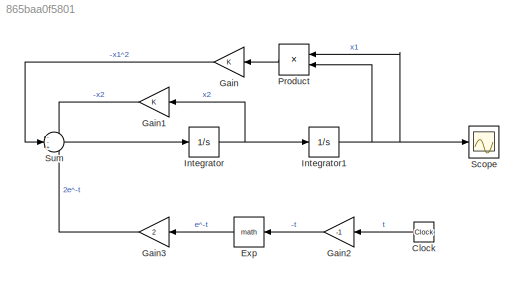
MODEL slx_865baa0f5801
KIND model
CONFIG AbsTol = auto
CONFIG EnableMultiTasking = off
CONFIG FixedStep = auto
CONFIG MaxStep = auto
CONFIG MinStep = auto
CONFIG RelTol = 1e-6
CONFIG SampleTimeConstraint = Unconstrained
CONFIG SolverName = VariableStepAuto
CONFIG StartTime = 0.0
CONFIG StopTime = 10.0
BLOCK [Clock] Clock
BLOCK [Math] Exp
BLOCK [Gain] Gain
BLOCK [Gain] Gain1
BLOCK [Gain] Gain2
  Gain = -1
BLOCK [Gain] Gain3
  Gain = 2
BLOCK [Integrator] Integrator
  InitialCondition = 1
BLOCK [Integrator] Integrator1
BLOCK [Product] Product
BLOCK [Scope] Scope
  ActiveDisplayYMaximum = 1.4648788259606318
  ActiveDisplayYMinimum = -0.18914698105563721
  Floating = off
  GraphicalSettings = {"Style":{"BackgroundColor":[1,1,1],"AxesColor":[1,1,1],"LabelsColor":[0.14901960784313725,0.14901960784313725,0.14901960784313725],"PreserveColors":false,"Visible":[true],"LineStyle":["-"],"LineWidth":[3],"BarWidth":[0.9],"LineColor":["auto"],"LineFaceAlpha":[1],"LineEdgeAlpha":[1],"Marker":["none"],"FontSize":8.5,"LineTrueColor":[[0.9294117647058824,0.6941176470588235,0.12549019607843137]],"Chan...<+1898ch>
  MultipleDisplayCache = [{"MaxYLimMag":1.4648788259606318,"MaxYLimReal":1.4648788259606318,"MinYLimMag":0,"MinYLimReal":-0.18914698105563721,"PlotAsMagnitudePhase":false,"ShowGrid":true,"ShowLegend":false,"Title":"%<SignalLabel>","YLabel":""}]
  NumInputPorts = 1
  ScopeFrameLocation = window
  WasSavedAsWebScope = on
  WindowPosition = [1000.000000,510.000000,560.000000,420.000000,]
BLOCK [Sum] Sum
  Inputs = --+
LINE Clock:1 -> Gain2:1
LINE Exp:1 -> Gain3:1
LINE Gain1:1 -> Sum:1
LINE Gain2:1 -> Exp:1
LINE Gain3:1 -> Sum:3
LINE Gain:1 -> Sum:2
NET Integrator1:1 -> Product:1, Product:2, Scope:1
NET Integrator:1 -> Gain1:1, Integrator1:1
LINE Product:1 -> Gain:1
LINE Sum:1 -> Integrator:1
note: NET lines group one-source signal fan-out (src -> all destinations, sorted); 1:1 wires keep LINE
